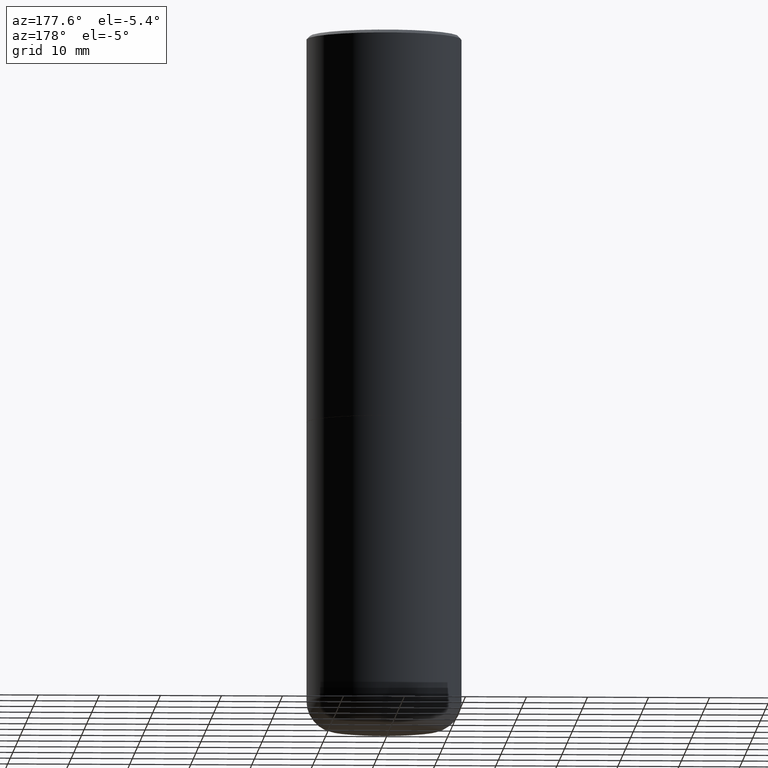
[diagram: clean part render]
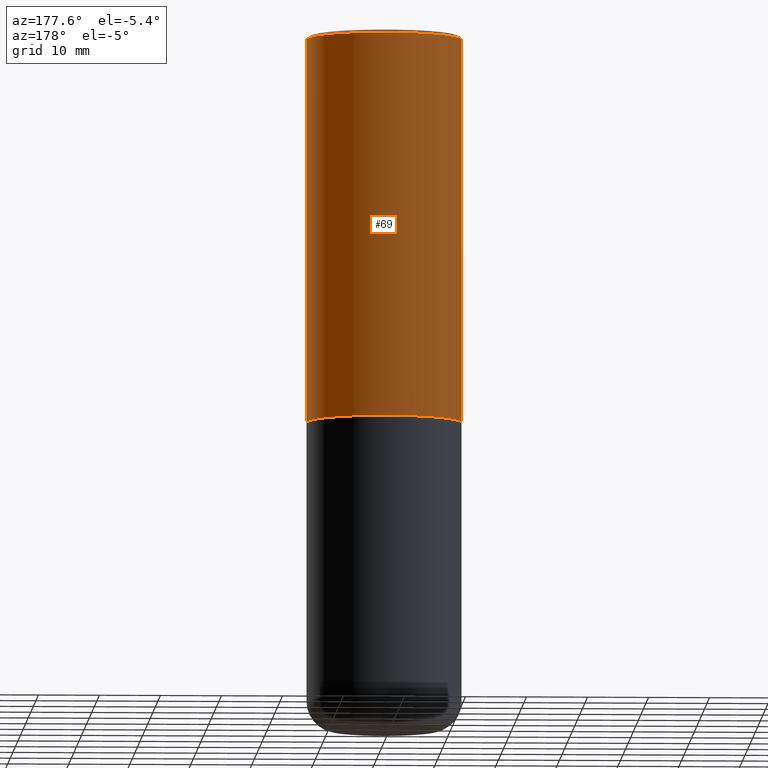
[diagram: same view with one face highlighted and labeled with its STEP entity id]
A machine part, auxiliary view. The second image highlights one B-rep face of the part: STEP entity #69.
In plain terms, the highlighted cylindrical surface (partial cylindrical patch) has radius 12.7 mm, axis along (-0, 0, 1).
Its self-contained STEP definition (entity closure, byte-faithful):
#1 = ORIENTED_EDGE ( 'NONE', *, *, #28, .F. ) ;
#8 = AXIS2_PLACEMENT_3D ( 'NONE', #254, #225, #391 ) ;
#13 = CYLINDRICAL_SURFACE ( 'NONE', #8, 0.5000000000000001110 ) ;
#27 = CARTESIAN_POINT ( 'NONE',  ( 0.5000000000000002220, -1.221669320461215845E-14, -2.499000000000000110 ) ) ;
#28 = EDGE_CURVE ( 'NONE', #73, #344, #97, .T. ) ;
#44 = CARTESIAN_POINT ( 'NONE',  ( 0.5000000000000001110, -3.491481338843134539E-15, 2.438088387897968457E-29 ) ) ;
#54 = DIRECTION ( 'NONE',  ( -2.445468806185136597E-29, 3.491481338843145583E-15, 1.000000000000000000 ) ) ;
#65 = CARTESIAN_POINT ( 'NONE',  ( 6.111226546656657010E-29, -8.725211865769021935E-15, -2.499000000000000110 ) ) ;
#69 = ADVANCED_FACE ( 'NONE', ( #265 ), #13, .T. ) ;
#73 = VERTEX_POINT ( 'NONE', #101 ) ;
#75 = CARTESIAN_POINT ( 'NONE',  ( -0.5000000000000001110, 3.421651712066270452E-15, -0.02000000000000010797 ) ) ;
#97 = CIRCLE ( 'NONE', #324, 0.5000000000000001110 ) ;
#101 = CARTESIAN_POINT ( 'NONE',  ( 0.5000000000000001110, -3.500078625662629868E-15, -0.02000000000000010797 ) ) ;
#102 = LINE ( 'NONE', #44, #284 ) ;
#124 = CARTESIAN_POINT ( 'NONE',  ( -0.5000000000000001110, 3.552713678800501718E-15, -2.459467545127453732E-29 ) ) ;
#130 = DIRECTION ( 'NONE',  ( -2.445468806185136877E-29, 3.491481338843145188E-15, 1.000000000000000000 ) ) ;
#139 = CARTESIAN_POINT ( 'NONE',  ( 4.890937612370299433E-31, -6.982962677686328587E-17, -0.02000000000000010797 ) ) ;
#160 = ORIENTED_EDGE ( 'NONE', *, *, #286, .F. ) ;
#168 = DIRECTION ( 'NONE',  ( -2.445468806185136877E-29, 3.491481338843145188E-15, 1.000000000000000000 ) ) ;
#178 = VECTOR ( 'NONE', #130, 39.37007874015748143 ) ;
#192 = DIRECTION ( 'NONE',  ( 1.000000000000000000, -6.982962677686265922E-15, 0.000000000000000000 ) ) ;
#225 = DIRECTION ( 'NONE',  ( -2.445468806185136597E-29, 3.491481338843145583E-15, 1.000000000000000000 ) ) ;
#241 = DIRECTION ( 'NONE',  ( -2.445468806185136597E-29, 3.491481338843145583E-15, 1.000000000000000000 ) ) ;
#254 = CARTESIAN_POINT ( 'NONE',  ( 0.000000000000000000, 0.000000000000000000, 0.000000000000000000 ) ) ;
#261 = EDGE_CURVE ( 'NONE', #289, #344, #415, .T. ) ;
#264 = CIRCLE ( 'NONE', #273, 0.5000000000000002220 ) ;
#265 = FACE_OUTER_BOUND ( 'NONE', #416, .T. ) ;
#273 = AXIS2_PLACEMENT_3D ( 'NONE', #65, #241, #383 ) ;
#283 = ORIENTED_EDGE ( 'NONE', *, *, #403, .T. ) ;
#284 = VECTOR ( 'NONE', #168, 39.37007874015748143 ) ;
#286 = EDGE_CURVE ( 'NONE', #392, #73, #102, .T. ) ;
#289 = VERTEX_POINT ( 'NONE', #357 ) ;
#304 = ORIENTED_EDGE ( 'NONE', *, *, #261, .T. ) ;
#324 = AXIS2_PLACEMENT_3D ( 'NONE', #139, #54, #192 ) ;
#344 = VERTEX_POINT ( 'NONE', #75 ) ;
#357 = CARTESIAN_POINT ( 'NONE',  ( -0.5000000000000002220, -8.448070674724393209E-16, -2.499000000000000110 ) ) ;
#383 = DIRECTION ( 'NONE',  ( 1.000000000000000000, -6.982962677686269866E-15, 0.000000000000000000 ) ) ;
#391 = DIRECTION ( 'NONE',  ( 1.000000000000000000, -6.982962677686267499E-15, 4.876176775795935793E-29 ) ) ;
#392 = VERTEX_POINT ( 'NONE', #27 ) ;
#403 = EDGE_CURVE ( 'NONE', #392, #289, #264, .T. ) ;
#415 = LINE ( 'NONE', #124, #178 ) ;
#416 = EDGE_LOOP ( 'NONE', ( #283, #304, #1, #160 ) ) ;